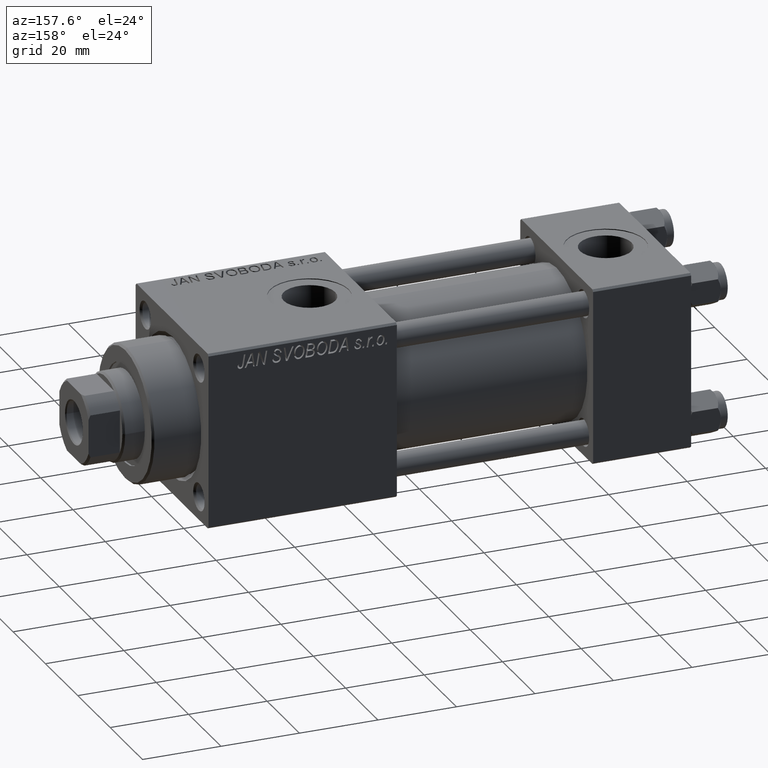
[diagram: clean part render]
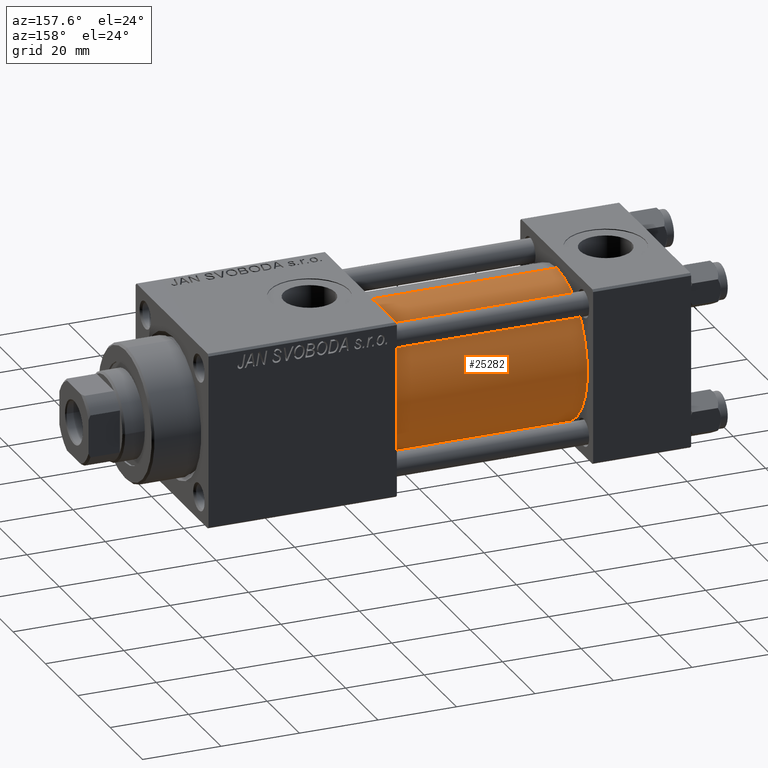
[diagram: same view with one face highlighted and labeled with its STEP entity id]
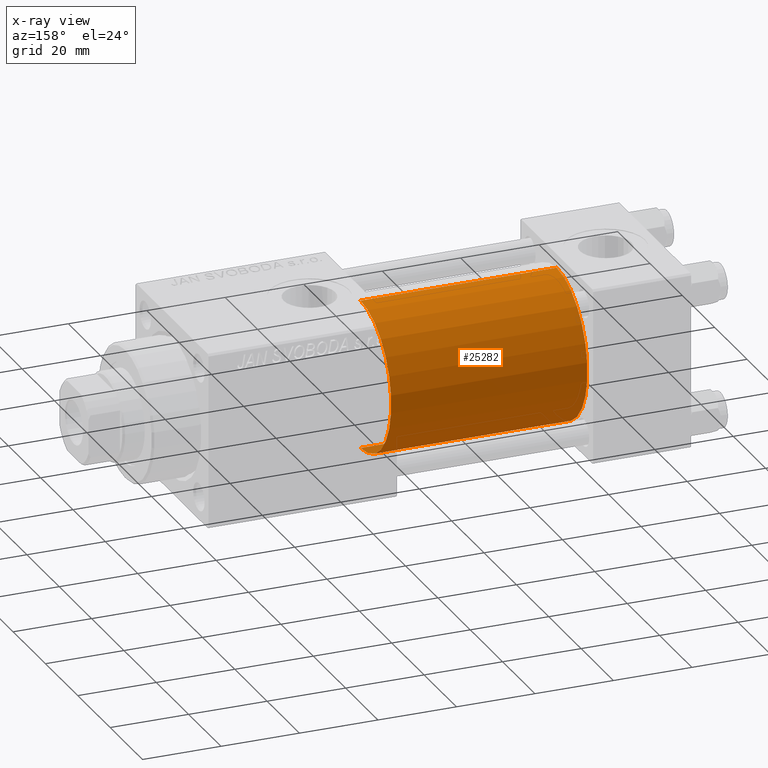
[diagram: x-ray of the same camera — body ghosted, the highlighted face saturated]
A machine part, auxiliary view. The second image highlights one B-rep face of the part: STEP entity #25282.
The next image is the same camera in x-ray: the body ghosted, the highlighted face saturated — about 0% of this face is hidden behind the body in this view.
In plain terms, the highlighted cylindrical surface (partial cylindrical patch) has radius 19 mm, axis along (-1, -0, -0).
Its self-contained STEP definition (entity closure, byte-faithful):
#479 = CARTESIAN_POINT ( 'NONE',  ( 75.00000000000001421, -2.602085213965210642E-15, 0.000000000000000000 ) ) ;
#742 = CARTESIAN_POINT ( 'NONE',  ( 75.00000000000001421, -2.752562955852396712E-16, -19.00000000000000000 ) ) ;
#3898 = CARTESIAN_POINT ( 'NONE',  ( 25.00000000000000000, -2.752562955852396712E-16, -19.00000000000000000 ) ) ;
#5710 = DIRECTION ( 'NONE',  ( 0.000000000000000000, 0.000000000000000000, 1.000000000000000000 ) ) ;
#5953 = ORIENTED_EDGE ( 'NONE', *, *, #20565, .F. ) ;
#7668 = DIRECTION ( 'NONE',  ( -1.000000000000000000, -0.000000000000000000, -0.000000000000000000 ) ) ;
#8446 = CARTESIAN_POINT ( 'NONE',  ( 75.00000000000001421, -2.602085213965210642E-15, 0.000000000000000000 ) ) ;
#11613 = DIRECTION ( 'NONE',  ( 0.000000000000000000, 0.000000000000000000, 1.000000000000000000 ) ) ;
#11714 = VERTEX_POINT ( 'NONE', #36771 ) ;
#12784 = AXIS2_PLACEMENT_3D ( 'NONE', #8446, #7668, #11613 ) ;
#16492 = DIRECTION ( 'NONE',  ( 1.000000000000000000, 0.000000000000000000, 0.000000000000000000 ) ) ;
#19805 = CARTESIAN_POINT ( 'NONE',  ( 75.00000000000001421, -2.602085213965210642E-15, 19.00000000000000000 ) ) ;
#20262 = CYLINDRICAL_SURFACE ( 'NONE', #12784, 19.00000000000000000 ) ;
#20563 = EDGE_CURVE ( 'NONE', #11714, #35503, #20676, .T. ) ;
#20565 = EDGE_CURVE ( 'NONE', #11714, #51112, #46066, .T. ) ;
#20676 = LINE ( 'NONE', #742, #32675 ) ;
#21353 = ORIENTED_EDGE ( 'NONE', *, *, #31951, .T. ) ;
#24215 = EDGE_LOOP ( 'NONE', ( #5953, #41366, #21353, #26440 ) ) ;
#25282 = ADVANCED_FACE ( 'NONE', ( #35481 ), #20262, .T. ) ;
#25381 = DIRECTION ( 'NONE',  ( -1.000000000000000000, -0.000000000000000000, -0.000000000000000000 ) ) ;
#26168 = LINE ( 'NONE', #29586, #28926 ) ;
#26368 = AXIS2_PLACEMENT_3D ( 'NONE', #49261, #29325, #5710 ) ;
#26440 = ORIENTED_EDGE ( 'NONE', *, *, #32792, .F. ) ;
#28926 = VECTOR ( 'NONE', #25381, 1000.000000000000000 ) ;
#29325 = DIRECTION ( 'NONE',  ( 1.000000000000000000, -0.000000000000000000, 0.000000000000000000 ) ) ;
#29586 = CARTESIAN_POINT ( 'NONE',  ( 75.00000000000001421, -2.602085213965210642E-15, 19.00000000000000000 ) ) ;
#30150 = AXIS2_PLACEMENT_3D ( 'NONE', #479, #16492, #51641 ) ;
#31951 = EDGE_CURVE ( 'NONE', #35503, #32490, #42286, .T. ) ;
#32490 = VERTEX_POINT ( 'NONE', #36059 ) ;
#32675 = VECTOR ( 'NONE', #36420, 1000.000000000000000 ) ;
#32792 = EDGE_CURVE ( 'NONE', #51112, #32490, #26168, .T. ) ;
#35481 = FACE_OUTER_BOUND ( 'NONE', #24215, .T. ) ;
#35503 = VERTEX_POINT ( 'NONE', #3898 ) ;
#36059 = CARTESIAN_POINT ( 'NONE',  ( 25.00000000000000000, -2.602085213965210642E-15, 19.00000000000000000 ) ) ;
#36420 = DIRECTION ( 'NONE',  ( -1.000000000000000000, -0.000000000000000000, -0.000000000000000000 ) ) ;
#36771 = CARTESIAN_POINT ( 'NONE',  ( 75.00000000000001421, -2.752562955852396712E-16, -19.00000000000000000 ) ) ;
#41366 = ORIENTED_EDGE ( 'NONE', *, *, #20563, .T. ) ;
#42286 = CIRCLE ( 'NONE', #26368, 19.00000000000000000 ) ;
#46066 = CIRCLE ( 'NONE', #30150, 19.00000000000000000 ) ;
#49261 = CARTESIAN_POINT ( 'NONE',  ( 25.00000000000000000, -2.602085213965210642E-15, 0.000000000000000000 ) ) ;
#51112 = VERTEX_POINT ( 'NONE', #19805 ) ;
#51641 = DIRECTION ( 'NONE',  ( 0.000000000000000000, 0.000000000000000000, -1.000000000000000000 ) ) ;